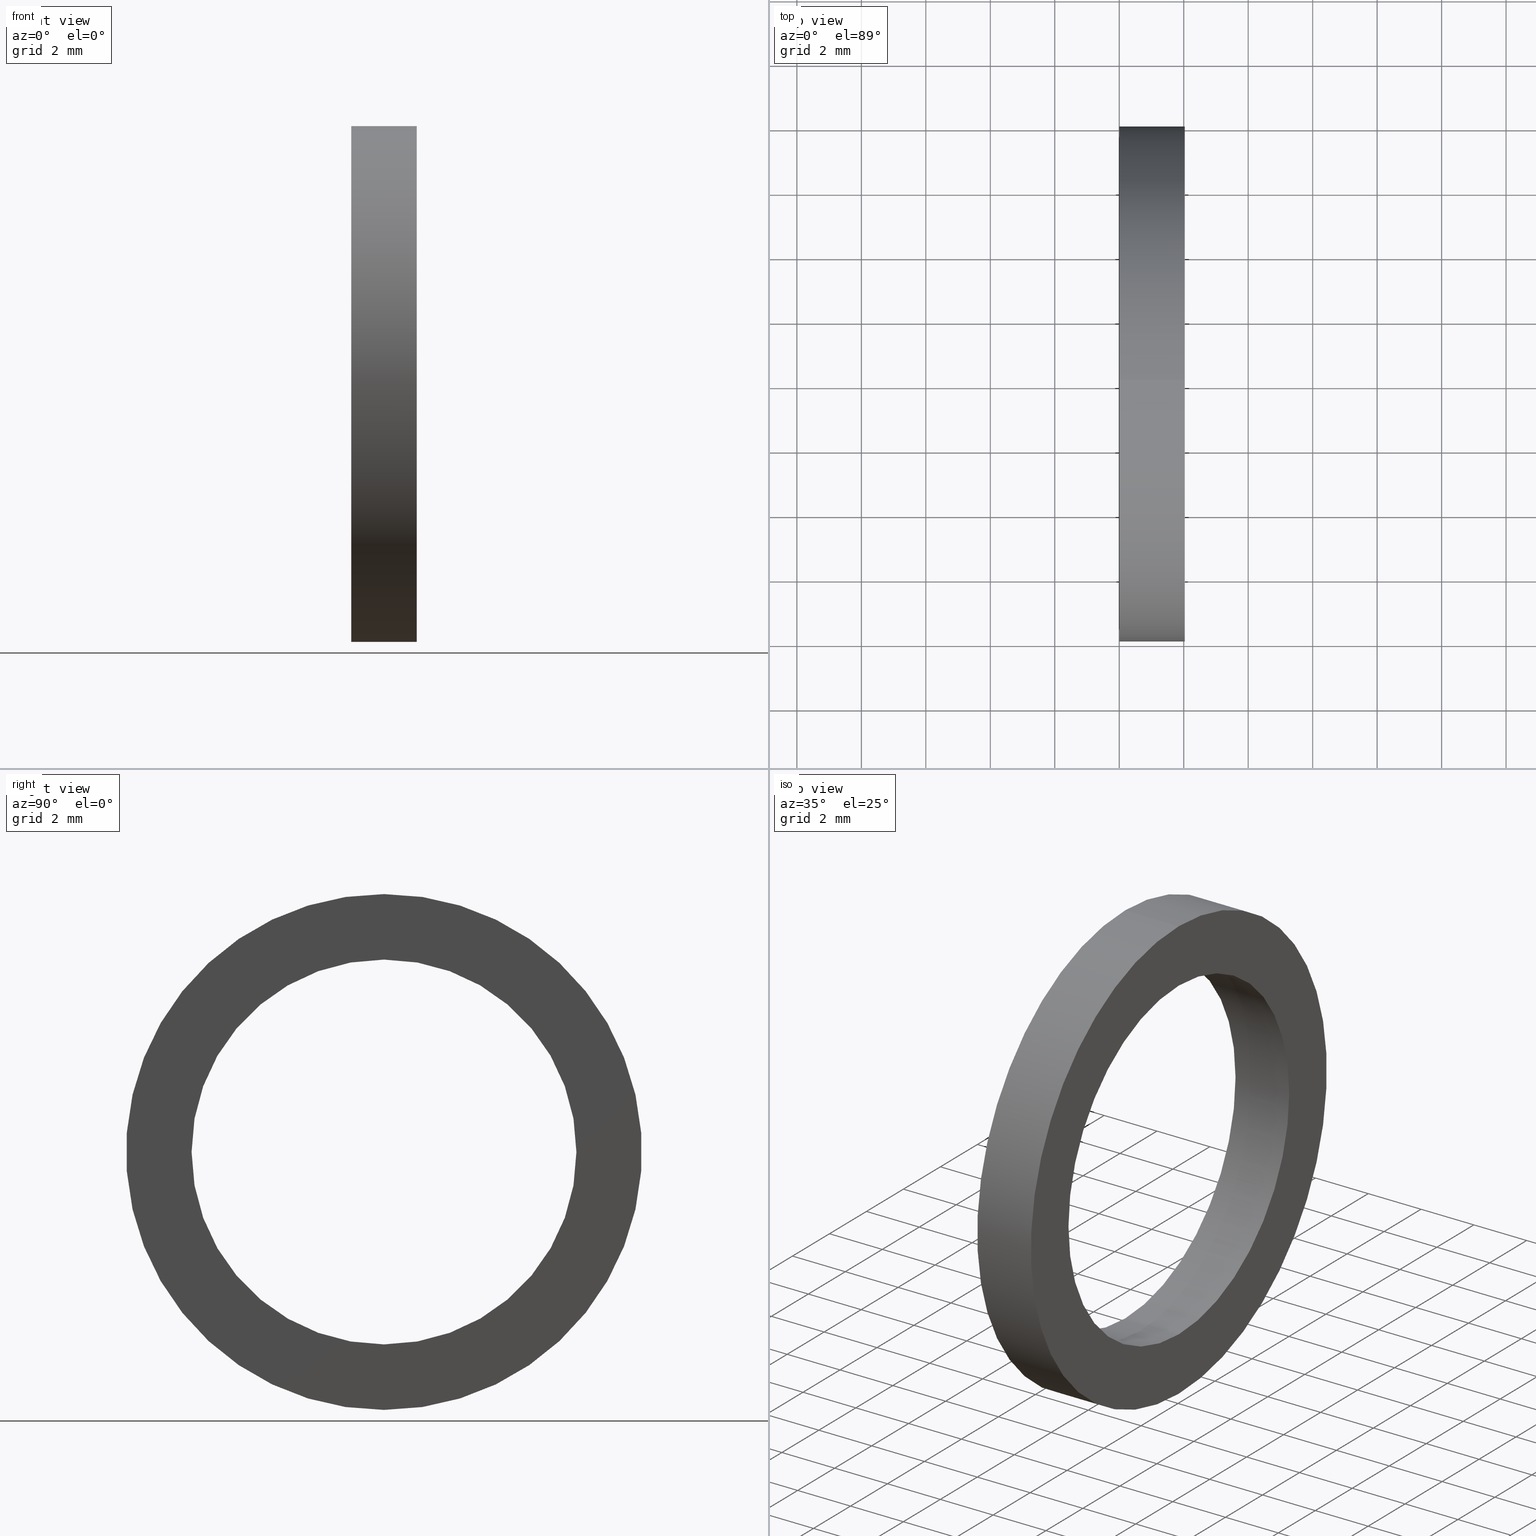
[diagram: canonical four-view strip — front | top / right | iso, engineering-drawing reading convention]
A machine part, canonical four-view strip (front | top / right | iso — engineering-drawing reading convention). The complete STEP part file that produces these views, byte-faithful:
ISO-10303-21;
HEADER;
FILE_DESCRIPTION (( 'STEP AP203' ),
    '1' );
FILE_NAME ('MS-12-NY.STEP',
    '2008-03-29T07:41:41',
    ( '' ),
    ( '' ),
    'SwSTEP 2.0',
    'SolidWorks 2007',
    '' );
FILE_SCHEMA (( 'CONFIG_CONTROL_DESIGN' ));
ENDSEC;

DATA;
#1 =( NAMED_UNIT ( * ) SI_UNIT ( $, .STERADIAN. ) SOLID_ANGLE_UNIT ( ) );
#2 =( GEOMETRIC_REPRESENTATION_CONTEXT ( 3 ) GLOBAL_UNCERTAINTY_ASSIGNED_CONTEXT ( ( #4 ) ) GLOBAL_UNIT_ASSIGNED_CONTEXT ( ( #25, #24, #1 ) ) REPRESENTATION_CONTEXT ( 'NONE', 'WORKASPACE' ) );
#3 = ADVANCED_BREP_SHAPE_REPRESENTATION ( 'MS-12-NY', ( #126, #179 ), #2 ) ;
#4 = UNCERTAINTY_MEASURE_WITH_UNIT (LENGTH_MEASURE( 1.000000000000000100E-005 ), #25, 'distance_accuracy_value', 'NONE');
#5 = LINE ( 'NONE', #171, #170 ) ;
#6 = DIRECTION ( 'NONE',  ( -1.000000000000000000, 0.0000000000000000000, 0.0000000000000000000 ) ) ;
#7 = VECTOR ( 'NONE', #6, 39.37007874015748100 ) ;
#8 = CARTESIAN_POINT ( 'NONE',  ( -1.721125226614714300, 0.0000000000000000000, 0.3150000000000000600 ) ) ;
#9 = DIRECTION ( 'NONE',  ( 0.0000000000000000000, 0.0000000000000000000, 1.000000000000000000 ) ) ;
#10 = DIRECTION ( 'NONE',  ( -1.000000000000000000, 0.0000000000000000000, 0.0000000000000000000 ) ) ;
#11 = CARTESIAN_POINT ( 'NONE',  ( -3.122746202247062400E-017, -0.2349999999999999900, 0.0000000000000000000 ) ) ;
#12 = AXIS2_PLACEMENT_3D ( 'NONE', #11, #10, #9 ) ;
#13 = LINE ( 'NONE', #8, #7 ) ;
#14 = PLANE ( 'NONE',  #12 ) ;
#15 = FACE_BOUND ( 'NONE', #136, .T. ) ;
#16 = FACE_OUTER_BOUND ( 'NONE', #66, .T. ) ;
#17 = CARTESIAN_POINT ( 'NONE',  ( 0.07999999999999996000, 0.0000000000000000000, 0.3150000000000000600 ) ) ;
#18 = CARTESIAN_POINT ( 'NONE',  ( 0.0000000000000000000, 0.0000000000000000000, 0.2349999999999999900 ) ) ;
#19 = ADVANCED_FACE ( 'NONE', ( #87 ), #85, .T. ) ;
#20 = EDGE_LOOP ( 'NONE', ( #55, #133, #65, #61 ) ) ;
#21 = EDGE_CURVE ( 'NONE', #124, #58, #81, .T. ) ;
#22 = VERTEX_POINT ( 'NONE', #76 ) ;
#23 = EDGE_CURVE ( 'NONE', #130, #124, #75, .T. ) ;
#24 =( NAMED_UNIT ( * ) PLANE_ANGLE_UNIT ( ) SI_UNIT ( $, .RADIAN. ) );
#25 =( CONVERSION_BASED_UNIT ( 'INCH', #26 ) LENGTH_UNIT ( ) NAMED_UNIT ( #27 ) );
#26 = LENGTH_MEASURE_WITH_UNIT ( LENGTH_MEASURE( 0.02539999999999999900 ), #88 );
#27 = DIMENSIONAL_EXPONENTS ( 1.000000000000000000, 0.0000000000000000000, 0.0000000000000000000, 0.0000000000000000000, 0.0000000000000000000, 0.0000000000000000000, 0.0000000000000000000 ) ;
#28 = DIRECTION ( 'NONE',  ( 0.0000000000000000000, 0.0000000000000000000, 1.000000000000000000 ) ) ;
#29 = DIRECTION ( 'NONE',  ( -1.000000000000000000, 0.0000000000000000000, 0.0000000000000000000 ) ) ;
#30 = CARTESIAN_POINT ( 'NONE',  ( 0.0000000000000000000, 0.0000000000000000000, 0.0000000000000000000 ) ) ;
#31 = AXIS2_PLACEMENT_3D ( 'NONE', #30, #29, #28 ) ;
#32 = CIRCLE ( 'NONE', #31, 0.3150000000000000000 ) ;
#33 = CARTESIAN_POINT ( 'NONE',  ( 0.0000000000000000000, 0.0000000000000000000, 0.3150000000000000000 ) ) ;
#34 = CARTESIAN_POINT ( 'NONE',  ( 0.07999999999999996000, 3.857637417314163300E-017, -0.3150000000000000600 ) ) ;
#35 = DIRECTION ( 'NONE',  ( 0.0000000000000000000, 0.0000000000000000000, 1.000000000000000000 ) ) ;
#36 = DIRECTION ( 'NONE',  ( -1.000000000000000000, 0.0000000000000000000, 0.0000000000000000000 ) ) ;
#37 = CARTESIAN_POINT ( 'NONE',  ( 0.0000000000000000000, 0.0000000000000000000, 0.0000000000000000000 ) ) ;
#38 = AXIS2_PLACEMENT_3D ( 'NONE', #37, #36, #35 ) ;
#39 = CIRCLE ( 'NONE', #38, 0.3150000000000000000 ) ;
#40 = DIRECTION ( 'NONE',  ( 0.0000000000000000000, 0.0000000000000000000, 1.000000000000000000 ) ) ;
#41 = DIRECTION ( 'NONE',  ( -1.000000000000000000, 0.0000000000000000000, 0.0000000000000000000 ) ) ;
#42 = AXIS2_PLACEMENT_3D ( 'NONE', #153, #41, #40 ) ;
#43 = CYLINDRICAL_SURFACE ( 'NONE', #42, 0.2349999999999999600 ) ;
#44 = CARTESIAN_POINT ( 'NONE',  ( 0.0000000000000000000, 3.857637417314162700E-017, -0.3150000000000000000 ) ) ;
#45 = ORIENTED_EDGE ( 'NONE', *, *, #46, .T. ) ;
#46 = EDGE_CURVE ( 'NONE', #137, #59, #70, .T. ) ;
#47 = ORIENTED_EDGE ( 'NONE', *, *, #62, .T. ) ;
#48 = ORIENTED_EDGE ( 'NONE', *, *, #52, .F. ) ;
#49 = ORIENTED_EDGE ( 'NONE', *, *, #64, .F. ) ;
#50 = ADVANCED_FACE ( 'NONE', ( #71 ), #150, .T. ) ;
#51 = EDGE_LOOP ( 'NONE', ( #49, #45, #47, #132 ) ) ;
#52 = EDGE_CURVE ( 'NONE', #58, #124, #145, .T. ) ;
#53 = ORIENTED_EDGE ( 'NONE', *, *, #21, .F. ) ;
#54 = ORIENTED_EDGE ( 'NONE', *, *, #57, .F. ) ;
#55 = ORIENTED_EDGE ( 'NONE', *, *, #56, .T. ) ;
#56 = EDGE_CURVE ( 'NONE', #59, #137, #120, .T. ) ;
#57 = EDGE_CURVE ( 'NONE', #22, #58, #121, .T. ) ;
#58 = VERTEX_POINT ( 'NONE', #18 ) ;
#59 = VERTEX_POINT ( 'NONE', #17 ) ;
#60 = ADVANCED_FACE ( 'NONE', ( #16, #15 ), #14, .T. ) ;
#61 = ORIENTED_EDGE ( 'NONE', *, *, #62, .F. ) ;
#62 = EDGE_CURVE ( 'NONE', #59, #138, #13, .T. ) ;
#63 = ORIENTED_EDGE ( 'NONE', *, *, #140, .T. ) ;
#64 = EDGE_CURVE ( 'NONE', #137, #134, #5, .T. ) ;
#65 = ORIENTED_EDGE ( 'NONE', *, *, #140, .F. ) ;
#66 = EDGE_LOOP ( 'NONE', ( #63, #139 ) ) ;
#67 = DIRECTION ( 'NONE',  ( -1.000000000000000000, 0.0000000000000000000, 0.0000000000000000000 ) ) ;
#68 = CARTESIAN_POINT ( 'NONE',  ( 0.07999999999999996000, 0.0000000000000000000, 0.0000000000000000000 ) ) ;
#69 = AXIS2_PLACEMENT_3D ( 'NONE', #68, #67, #152 ) ;
#70 = CIRCLE ( 'NONE', #69, 0.3150000000000000600 ) ;
#71 = FACE_OUTER_BOUND ( 'NONE', #51, .T. ) ;
#72 = DIRECTION ( 'NONE',  ( -1.000000000000000000, 0.0000000000000000000, 0.0000000000000000000 ) ) ;
#73 = VECTOR ( 'NONE', #72, 39.37007874015748100 ) ;
#74 = CARTESIAN_POINT ( 'NONE',  ( -1.721125226614714300, 2.877919977996279200E-017, -0.2349999999999999600 ) ) ;
#75 = LINE ( 'NONE', #74, #73 ) ;
#76 = CARTESIAN_POINT ( 'NONE',  ( 0.07999999999999996000, 0.0000000000000000000, 0.2349999999999999600 ) ) ;
#77 = DIRECTION ( 'NONE',  ( 0.0000000000000000000, 0.0000000000000000000, 1.000000000000000000 ) ) ;
#78 = DIRECTION ( 'NONE',  ( -1.000000000000000000, 0.0000000000000000000, 0.0000000000000000000 ) ) ;
#79 = CARTESIAN_POINT ( 'NONE',  ( 0.0000000000000000000, 0.0000000000000000000, 0.0000000000000000000 ) ) ;
#80 = AXIS2_PLACEMENT_3D ( 'NONE', #79, #78, #77 ) ;
#81 = CIRCLE ( 'NONE', #80, 0.2349999999999999900 ) ;
#82 = DIRECTION ( 'NONE',  ( 0.0000000000000000000, 0.0000000000000000000, 1.000000000000000000 ) ) ;
#83 = DIRECTION ( 'NONE',  ( -1.000000000000000000, 0.0000000000000000000, 0.0000000000000000000 ) ) ;
#84 = AXIS2_PLACEMENT_3D ( 'NONE', #86, #83, #82 ) ;
#85 = CYLINDRICAL_SURFACE ( 'NONE', #84, 0.3150000000000000600 ) ;
#86 = CARTESIAN_POINT ( 'NONE',  ( -1.721125226614714300, 0.0000000000000000000, 0.0000000000000000000 ) ) ;
#87 = FACE_OUTER_BOUND ( 'NONE', #20, .T. ) ;
#88 =( LENGTH_UNIT ( ) NAMED_UNIT ( * ) SI_UNIT ( $, .METRE. ) );
#89 = ADVANCED_FACE ( 'NONE', ( #168 ), #167, .F. ) ;
#90 = ORIENTED_EDGE ( 'NONE', *, *, #23, .F. ) ;
#91 = ORIENTED_EDGE ( 'NONE', *, *, #56, .F. ) ;
#92 = ORIENTED_EDGE ( 'NONE', *, *, #52, .T. ) ;
#93 = CLOSED_SHELL ( 'NONE', ( #131, #19, #60, #50, #100, #89 ) ) ;
#94 = EDGE_LOOP ( 'NONE', ( #102, #125 ) ) ;
#95 = ORIENTED_EDGE ( 'NONE', *, *, #46, .F. ) ;
#96 = EDGE_LOOP ( 'NONE', ( #90, #97, #98, #92 ) ) ;
#97 = ORIENTED_EDGE ( 'NONE', *, *, #99, .F. ) ;
#98 = ORIENTED_EDGE ( 'NONE', *, *, #57, .T. ) ;
#99 = EDGE_CURVE ( 'NONE', #22, #130, #113, .T. ) ;
#100 = ADVANCED_FACE ( 'NONE', ( #109, #108 ), #107, .T. ) ;
#101 = EDGE_LOOP ( 'NONE', ( #91, #95 ) ) ;
#102 = ORIENTED_EDGE ( 'NONE', *, *, #99, .T. ) ;
#103 = DIRECTION ( 'NONE',  ( 0.0000000000000000000, 0.0000000000000000000, -1.000000000000000000 ) ) ;
#104 = DIRECTION ( 'NONE',  ( 1.000000000000000000, 0.0000000000000000000, 0.0000000000000000000 ) ) ;
#105 = CARTESIAN_POINT ( 'NONE',  ( 0.07999999999999996000, -0.2349999999999999600, 0.0000000000000000000 ) ) ;
#106 = AXIS2_PLACEMENT_3D ( 'NONE', #105, #104, #103 ) ;
#107 = PLANE ( 'NONE',  #106 ) ;
#108 = FACE_OUTER_BOUND ( 'NONE', #101, .T. ) ;
#109 = FACE_BOUND ( 'NONE', #94, .T. ) ;
#110 = DIRECTION ( 'NONE',  ( 0.0000000000000000000, 0.0000000000000000000, 1.000000000000000000 ) ) ;
#111 = DIRECTION ( 'NONE',  ( -1.000000000000000000, 0.0000000000000000000, 0.0000000000000000000 ) ) ;
#112 = AXIS2_PLACEMENT_3D ( 'NONE', #162, #111, #110 ) ;
#113 = CIRCLE ( 'NONE', #112, 0.2349999999999999600 ) ;
#114 = DIRECTION ( 'NONE',  ( -1.000000000000000000, 0.0000000000000000000, 0.0000000000000000000 ) ) ;
#115 = VECTOR ( 'NONE', #114, 39.37007874015748100 ) ;
#116 = CARTESIAN_POINT ( 'NONE',  ( -1.721125226614714300, 0.0000000000000000000, 0.2349999999999999600 ) ) ;
#117 = DIRECTION ( 'NONE',  ( 0.0000000000000000000, 0.0000000000000000000, 1.000000000000000000 ) ) ;
#118 = DIRECTION ( 'NONE',  ( -1.000000000000000000, 0.0000000000000000000, 0.0000000000000000000 ) ) ;
#119 = AXIS2_PLACEMENT_3D ( 'NONE', #146, #118, #117 ) ;
#120 = CIRCLE ( 'NONE', #119, 0.3150000000000000600 ) ;
#121 = LINE ( 'NONE', #116, #115 ) ;
#122 = ORIENTED_EDGE ( 'NONE', *, *, #21, .T. ) ;
#123 = ORIENTED_EDGE ( 'NONE', *, *, #23, .T. ) ;
#124 = VERTEX_POINT ( 'NONE', #161 ) ;
#125 = ORIENTED_EDGE ( 'NONE', *, *, #129, .T. ) ;
#126 = MANIFOLD_SOLID_BREP ( 'NONE', #93 ) ;
#127 = EDGE_LOOP ( 'NONE', ( #128, #123, #122, #54 ) ) ;
#128 = ORIENTED_EDGE ( 'NONE', *, *, #129, .F. ) ;
#129 = EDGE_CURVE ( 'NONE', #130, #22, #160, .T. ) ;
#130 = VERTEX_POINT ( 'NONE', #155 ) ;
#131 = ADVANCED_FACE ( 'NONE', ( #154 ), #43, .F. ) ;
#132 = ORIENTED_EDGE ( 'NONE', *, *, #135, .F. ) ;
#133 = ORIENTED_EDGE ( 'NONE', *, *, #64, .T. ) ;
#134 = VERTEX_POINT ( 'NONE', #44 ) ;
#135 = EDGE_CURVE ( 'NONE', #134, #138, #39, .T. ) ;
#136 = EDGE_LOOP ( 'NONE', ( #48, #53 ) ) ;
#137 = VERTEX_POINT ( 'NONE', #34 ) ;
#138 = VERTEX_POINT ( 'NONE', #33 ) ;
#139 = ORIENTED_EDGE ( 'NONE', *, *, #135, .T. ) ;
#140 = EDGE_CURVE ( 'NONE', #138, #134, #32, .T. ) ;
#141 = DIRECTION ( 'NONE',  ( 0.0000000000000000000, 0.0000000000000000000, 1.000000000000000000 ) ) ;
#142 = DIRECTION ( 'NONE',  ( -1.000000000000000000, 0.0000000000000000000, 0.0000000000000000000 ) ) ;
#143 = CARTESIAN_POINT ( 'NONE',  ( 0.0000000000000000000, 0.0000000000000000000, 0.0000000000000000000 ) ) ;
#144 = AXIS2_PLACEMENT_3D ( 'NONE', #143, #142, #141 ) ;
#145 = CIRCLE ( 'NONE', #144, 0.2349999999999999900 ) ;
#146 = CARTESIAN_POINT ( 'NONE',  ( 0.07999999999999996000, 0.0000000000000000000, 0.0000000000000000000 ) ) ;
#147 = DIRECTION ( 'NONE',  ( 0.0000000000000000000, 0.0000000000000000000, 1.000000000000000000 ) ) ;
#148 = DIRECTION ( 'NONE',  ( -1.000000000000000000, 0.0000000000000000000, 0.0000000000000000000 ) ) ;
#149 = AXIS2_PLACEMENT_3D ( 'NONE', #151, #148, #147 ) ;
#150 = CYLINDRICAL_SURFACE ( 'NONE', #149, 0.3150000000000000600 ) ;
#151 = CARTESIAN_POINT ( 'NONE',  ( -1.721125226614714300, 0.0000000000000000000, 0.0000000000000000000 ) ) ;
#152 = DIRECTION ( 'NONE',  ( 0.0000000000000000000, 0.0000000000000000000, 1.000000000000000000 ) ) ;
#153 = CARTESIAN_POINT ( 'NONE',  ( -1.721125226614714300, 0.0000000000000000000, 0.0000000000000000000 ) ) ;
#154 = FACE_OUTER_BOUND ( 'NONE', #127, .T. ) ;
#155 = CARTESIAN_POINT ( 'NONE',  ( 0.07999999999999996000, 2.877919977996279200E-017, -0.2349999999999999600 ) ) ;
#156 = DIRECTION ( 'NONE',  ( 0.0000000000000000000, 0.0000000000000000000, 1.000000000000000000 ) ) ;
#157 = DIRECTION ( 'NONE',  ( -1.000000000000000000, 0.0000000000000000000, 0.0000000000000000000 ) ) ;
#158 = CARTESIAN_POINT ( 'NONE',  ( 0.07999999999999996000, 0.0000000000000000000, 0.0000000000000000000 ) ) ;
#159 = AXIS2_PLACEMENT_3D ( 'NONE', #158, #157, #156 ) ;
#160 = CIRCLE ( 'NONE', #159, 0.2349999999999999600 ) ;
#161 = CARTESIAN_POINT ( 'NONE',  ( 0.0000000000000000000, 2.877919977996279800E-017, -0.2350000000000000100 ) ) ;
#162 = CARTESIAN_POINT ( 'NONE',  ( 0.07999999999999996000, 0.0000000000000000000, 0.0000000000000000000 ) ) ;
#163 = DIRECTION ( 'NONE',  ( 0.0000000000000000000, 0.0000000000000000000, 1.000000000000000000 ) ) ;
#164 = DIRECTION ( 'NONE',  ( -1.000000000000000000, 0.0000000000000000000, 0.0000000000000000000 ) ) ;
#165 = CARTESIAN_POINT ( 'NONE',  ( -1.721125226614714300, 0.0000000000000000000, 0.0000000000000000000 ) ) ;
#166 = AXIS2_PLACEMENT_3D ( 'NONE', #165, #164, #163 ) ;
#167 = CYLINDRICAL_SURFACE ( 'NONE', #166, 0.2349999999999999600 ) ;
#168 = FACE_OUTER_BOUND ( 'NONE', #96, .T. ) ;
#169 = DIRECTION ( 'NONE',  ( -1.000000000000000000, 0.0000000000000000000, 0.0000000000000000000 ) ) ;
#170 = VECTOR ( 'NONE', #169, 39.37007874015748100 ) ;
#171 = CARTESIAN_POINT ( 'NONE',  ( -1.721125226614714300, 3.857637417314163300E-017, -0.3150000000000000600 ) ) ;
#172 = DATE_AND_TIME ( #173, #174 ) ;
#173 = CALENDAR_DATE ( 2008, 29, 3 ) ;
#174 = LOCAL_TIME ( 13, 11, 41.00000000000000000, #175 ) ;
#175 = COORDINATED_UNIVERSAL_TIME_OFFSET ( 5, 30, .AHEAD. ) ;
#176 = CC_DESIGN_PERSON_AND_ORGANIZATION_ASSIGNMENT ( #178, #177, ( #228 ) ) ;
#177 = PERSON_AND_ORGANIZATION_ROLE ( 'creator' ) ;
#178 = PERSON_AND_ORGANIZATION ( #234, #206 ) ;
#179 = AXIS2_PLACEMENT_3D ( 'NONE', #180, #251, #250 ) ;
#180 = CARTESIAN_POINT ( 'NONE',  ( 0.0000000000000000000, 0.0000000000000000000, 0.0000000000000000000 ) ) ;
#181 = PERSON_AND_ORGANIZATION ( #234, #206 ) ;
#182 = PRODUCT_DEFINITION_SHAPE ( 'NONE', 'NONE',  #228 ) ;
#183 = PRODUCT_RELATED_PRODUCT_CATEGORY ( 'detail', '', ( #246 ) ) ;
#184 = CC_DESIGN_SECURITY_CLASSIFICATION ( #205, ( #225 ) ) ;
#185 = CC_DESIGN_APPROVAL ( #193, ( #205 ) ) ;
#186 = APPROVAL_DATE_TIME ( #187, #193 ) ;
#187 = DATE_AND_TIME ( #188, #189 ) ;
#188 = CALENDAR_DATE ( 2008, 29, 3 ) ;
#189 = LOCAL_TIME ( 13, 11, 41.00000000000000000, #190 ) ;
#190 = COORDINATED_UNIVERSAL_TIME_OFFSET ( 5, 30, .AHEAD. ) ;
#191 = APPROVAL_PERSON_ORGANIZATION ( #195, #193, #192 ) ;
#192 = APPROVAL_ROLE ( '' ) ;
#193 = APPROVAL ( #194, 'UNSPECIFIED' ) ;
#194 = APPROVAL_STATUS ( 'not_yet_approved' ) ;
#195 = PERSON_AND_ORGANIZATION ( #234, #206 ) ;
#196 = CC_DESIGN_DATE_AND_TIME_ASSIGNMENT ( #198, #197, ( #205 ) ) ;
#197 = DATE_TIME_ROLE ( 'classification_date' ) ;
#198 = DATE_AND_TIME ( #199, #200 ) ;
#199 = CALENDAR_DATE ( 2008, 29, 3 ) ;
#200 = LOCAL_TIME ( 13, 11, 41.00000000000000000, #201 ) ;
#201 = COORDINATED_UNIVERSAL_TIME_OFFSET ( 5, 30, .AHEAD. ) ;
#202 = CC_DESIGN_PERSON_AND_ORGANIZATION_ASSIGNMENT ( #204, #203, ( #205 ) ) ;
#203 = PERSON_AND_ORGANIZATION_ROLE ( 'classification_officer' ) ;
#204 = PERSON_AND_ORGANIZATION ( #234, #206 ) ;
#205 = SECURITY_CLASSIFICATION ( '', '', #207 ) ;
#206 = ORGANIZATION ( 'UNSPECIFIED', 'UNSPECIFIED', '' ) ;
#207 = SECURITY_CLASSIFICATION_LEVEL ( 'unclassified' ) ;
#208 = CC_DESIGN_PERSON_AND_ORGANIZATION_ASSIGNMENT ( #210, #209, ( #225 ) ) ;
#209 = PERSON_AND_ORGANIZATION_ROLE ( 'design_supplier' ) ;
#210 = PERSON_AND_ORGANIZATION ( #234, #206 ) ;
#211 = CC_DESIGN_PERSON_AND_ORGANIZATION_ASSIGNMENT ( #213, #212, ( #225 ) ) ;
#212 = PERSON_AND_ORGANIZATION_ROLE ( 'creator' ) ;
#213 = PERSON_AND_ORGANIZATION ( #234, #206 ) ;
#214 = CC_DESIGN_APPROVAL ( #222, ( #225 ) ) ;
#215 = APPROVAL_DATE_TIME ( #216, #222 ) ;
#216 = DATE_AND_TIME ( #217, #218 ) ;
#217 = CALENDAR_DATE ( 2008, 29, 3 ) ;
#218 = LOCAL_TIME ( 13, 11, 41.00000000000000000, #219 ) ;
#219 = COORDINATED_UNIVERSAL_TIME_OFFSET ( 5, 30, .AHEAD. ) ;
#220 = APPROVAL_PERSON_ORGANIZATION ( #224, #222, #221 ) ;
#221 = APPROVAL_ROLE ( '' ) ;
#222 = APPROVAL ( #223, 'UNSPECIFIED' ) ;
#223 = APPROVAL_STATUS ( 'not_yet_approved' ) ;
#224 = PERSON_AND_ORGANIZATION ( #234, #206 ) ;
#225 = PRODUCT_DEFINITION_FORMATION_WITH_SPECIFIED_SOURCE ( 'ANY', '', #246, .NOT_KNOWN. ) ;
#226 = CC_DESIGN_DATE_AND_TIME_ASSIGNMENT ( #172, #227, ( #228 ) ) ;
#227 = DATE_TIME_ROLE ( 'creation_date' ) ;
#228 = PRODUCT_DEFINITION ( 'UNKNOWN', '', #225, #229 ) ;
#229 = DESIGN_CONTEXT ( 'detailed design', #231, 'design' ) ;
#230 = APPLICATION_PROTOCOL_DEFINITION ( 'international standard', 'config_control_design', 1994, #231 ) ;
#231 = APPLICATION_CONTEXT ( 'configuration controlled 3d designs of mechanical parts and assemblies' ) ;
#232 = CC_DESIGN_PERSON_AND_ORGANIZATION_ASSIGNMENT ( #181, #233, ( #246 ) ) ;
#233 = PERSON_AND_ORGANIZATION_ROLE ( 'design_owner' ) ;
#234 = PERSON ( 'UNSPECIFIED', 'UNSPECIFIED', 'UNSPECIFIED', ('UNSPECIFIED'), ('UNSPECIFIED'), ('UNSPECIFIED') ) ;
#235 = CC_DESIGN_APPROVAL ( #243, ( #228 ) ) ;
#236 = APPROVAL_DATE_TIME ( #237, #243 ) ;
#237 = DATE_AND_TIME ( #238, #239 ) ;
#238 = CALENDAR_DATE ( 2008, 29, 3 ) ;
#239 = LOCAL_TIME ( 13, 11, 41.00000000000000000, #240 ) ;
#240 = COORDINATED_UNIVERSAL_TIME_OFFSET ( 5, 30, .AHEAD. ) ;
#241 = APPROVAL_PERSON_ORGANIZATION ( #245, #243, #242 ) ;
#242 = APPROVAL_ROLE ( '' ) ;
#243 = APPROVAL ( #244, 'UNSPECIFIED' ) ;
#244 = APPROVAL_STATUS ( 'not_yet_approved' ) ;
#245 = PERSON_AND_ORGANIZATION ( #234, #206 ) ;
#246 = PRODUCT ( 'MS-12-NY', 'MS-12-NY', '', ( #247 ) ) ;
#247 = MECHANICAL_CONTEXT ( 'NONE', #249, 'mechanical' ) ;
#248 = APPLICATION_PROTOCOL_DEFINITION ( 'international standard', 'config_control_design', 1994, #249 ) ;
#249 = APPLICATION_CONTEXT ( 'configuration controlled 3d designs of mechanical parts and assemblies' ) ;
#250 = DIRECTION ( 'NONE',  ( 1.000000000000000000, 0.0000000000000000000, 0.0000000000000000000 ) ) ;
#251 = DIRECTION ( 'NONE',  ( 0.0000000000000000000, 0.0000000000000000000, 1.000000000000000000 ) ) ;
#252 = SHAPE_DEFINITION_REPRESENTATION ( #182, #3 ) ;
ENDSEC;
END-ISO-10303-21;
